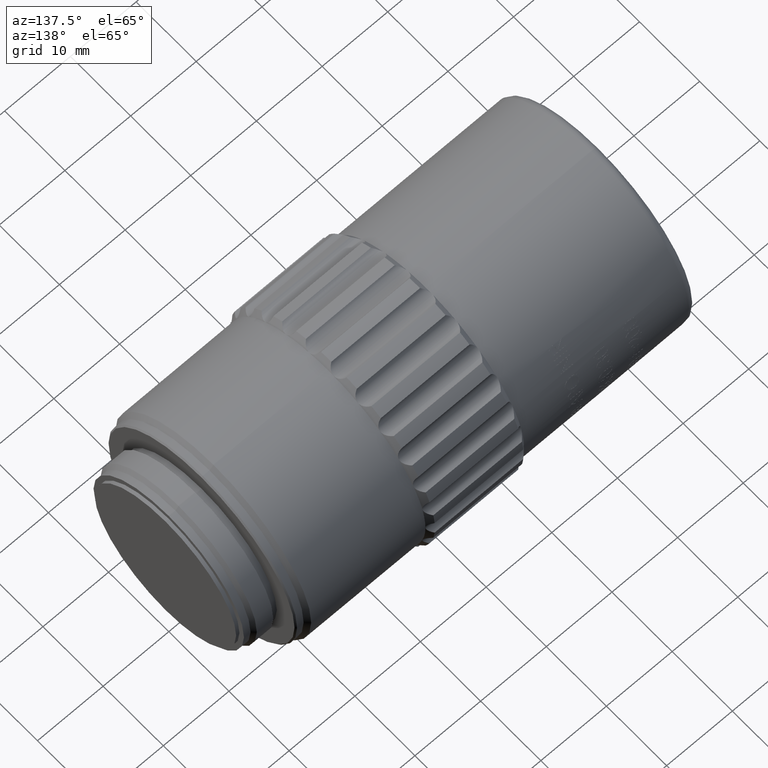
[diagram: clean part render]
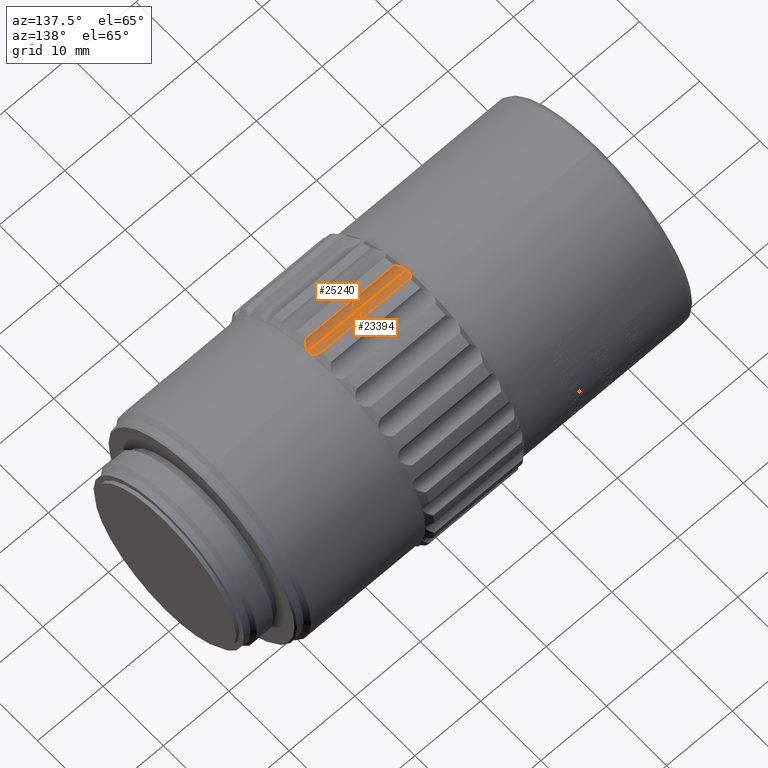
[diagram: same view with one multi-face feature highlighted, each face labeled with its STEP entity id]
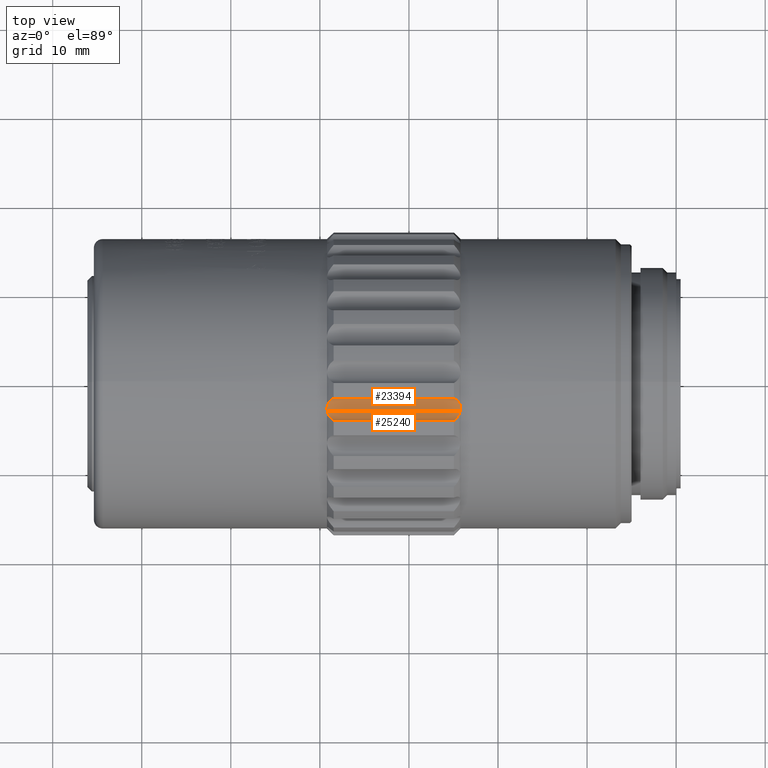
[diagram: same view with one multi-face feature highlighted, each face labeled with its STEP entity id]
A machine part, auxiliary view. The highlighted faces form ONE feature: a constant-radius fillet chain: 2 tangent blend faces with common blend radius 1.5 mm. The faces share edges in the B-rep.
A second angle (top view) of the same feature is appended — it is thin or edge-on in the first view.
Their STEP definitions:
[1] entity #23394 (Cylinder):
#150 = DIRECTION ( 'NONE',  ( 1.000000000000000000, -0.000000000000000000, -0.000000000000000000 ) ) ;
#260 = ORIENTED_EDGE ( 'NONE', *, *, #24752, .F. ) ;
#437 = EDGE_LOOP ( 'NONE', ( #15414, #11330, #7886, #3222, #260, #16733 ) ) ;
#728 = B_SPLINE_CURVE_WITH_KNOTS ( 'NONE', 3,
 ( #6551, #14457, #29446, #19236, #4070, #14127, #16930, #24168, #1606, #26807 ),
 .UNSPECIFIED., .F., .F.,
 ( 4, 2, 2, 2, 4 ),
 ( 2.974564130038924633E-07, 0.0004282492857254085149, 0.0008562011150378131619, 0.001284152944350218026, 0.001712104773662622564 ),
 .UNSPECIFIED. ) ;
#1353 = CARTESIAN_POINT ( 'NONE',  ( 75.40962903202934342, -2.146819791066993499, 16.50147826266095308 ) ) ;
#1606 = CARTESIAN_POINT ( 'NONE',  ( 60.79999999999997584, -2.903777057719374000, 15.98909730937626428 ) ) ;
#1623 = CARTESIAN_POINT ( 'NONE',  ( 60.79999999999997584, -3.044946362018025710, 15.96216782434119530 ) ) ;
#2027 = CARTESIAN_POINT ( 'NONE',  ( 75.78991868600670045, -3.233442578660439271, 15.93559870043398696 ) ) ;
#2231 = VERTEX_POINT ( 'NONE', #13215 ) ;
#3222 = ORIENTED_EDGE ( 'NONE', *, *, #12245, .T. ) ;
#3972 = CARTESIAN_POINT ( 'NONE',  ( 75.14589054742583585, -1.968093483769524532, 16.78922534943584211 ) ) ;
#4070 = CARTESIAN_POINT ( 'NONE',  ( 61.10973675671873906, -2.224176612620375248, 16.41002070416310232 ) ) ;
#4331 = CARTESIAN_POINT ( 'NONE',  ( 61.54999999999999716, -1.928669130568464007, 16.89024083264630249 ) ) ;
#4573 = CARTESIAN_POINT ( 'NONE',  ( 60.80995898652800236, -3.232843854271358897, 15.93559870043414683 ) ) ;
#6450 = CARTESIAN_POINT ( 'NONE',  ( 75.69228534282547116, -2.520179302112122599, 16.16294462097897267 ) ) ;
#6517 = EDGE_CURVE ( 'NONE', #20421, #2231, #13465, .T. ) ;
#6551 = CARTESIAN_POINT ( 'NONE',  ( 61.54999999999999716, -1.928669130568464007, 16.89024083264630249 ) ) ;
#6915 = VERTEX_POINT ( 'NONE', #15006 ) ;
#7886 = ORIENTED_EDGE ( 'NONE', *, *, #6517, .T. ) ;
#10396 = EDGE_CURVE ( 'NONE', #24917, #6915, #27034, .T. ) ;
#11330 = ORIENTED_EDGE ( 'NONE', *, *, #11764, .T. ) ;
#11407 = CARTESIAN_POINT ( 'NONE',  ( 75.23739571389702974, -2.018785572550483298, 16.69113063305953304 ) ) ;
#11675 = CARTESIAN_POINT ( 'NONE',  ( 60.82899578901275817, -3.326018333896651136, 15.93559870043417881 ) ) ;
#11743 = CARTESIAN_POINT ( 'NONE',  ( 75.79999999999999716, -3.137510692867787832, 15.94451023387006749 ) ) ;
#11764 = EDGE_CURVE ( 'NONE', #6915, #20421, #14972, .T. ) ;
#12091 = CARTESIAN_POINT ( 'NONE',  ( 75.04999999999999716, -1.928669130568467116, 16.89024083264629539 ) ) ;
#12245 = EDGE_CURVE ( 'NONE', #2231, #16861, #17495, .T. ) ;
#12308 = DIRECTION ( 'NONE',  ( 1.000000000000000000, -0.000000000000000000, -0.000000000000000000 ) ) ;
#12750 = CYLINDRICAL_SURFACE ( 'NONE', #30454, 1.500000000000001332 ) ;
#12915 = CARTESIAN_POINT ( 'NONE',  ( 57.49999999999997868, -3.326018333896612500, 17.43559870043422677 ) ) ;
#13215 = CARTESIAN_POINT ( 'NONE',  ( 75.79999999999999716, -3.044946362018025265, 15.96216782434119175 ) ) ;
#13465 = B_SPLINE_CURVE_WITH_KNOTS ( 'NONE', 3,
 ( #31978, #2027, #11743, #27067 ),
 .UNSPECIFIED., .F., .F.,
 ( 4, 4 ),
 ( 0.001431497917143599672, 0.001712104773662712119 ),
 .UNSPECIFIED. ) ;
#13881 = CARTESIAN_POINT ( 'NONE',  ( 75.63192979633140567, -2.411030420946006281, 16.24040379550284285 ) ) ;
#14127 = CARTESIAN_POINT ( 'NONE',  ( 60.96823422223180700, -2.410640219768960701, 16.24063078732669752 ) ) ;
#14195 = CARTESIAN_POINT ( 'NONE',  ( 75.49136205464864702, -2.225452049319518011, 16.40873571304407719 ) ) ;
#14457 = CARTESIAN_POINT ( 'NONE',  ( 61.45408960883360550, -1.968101642307118038, 16.78920444513302002 ) ) ;
#14972 = LINE ( 'NONE', #17607, #25351 ) ;
#15006 = CARTESIAN_POINT ( 'NONE',  ( 60.82899578901275817, -3.326018333896651136, 15.93559870043417881 ) ) ;
#15414 = ORIENTED_EDGE ( 'NONE', *, *, #10396, .T. ) ;
#16665 = CARTESIAN_POINT ( 'NONE',  ( 75.80000000000002558, -2.903962495170082203, 15.98906193529066044 ) ) ;
#16733 = ORIENTED_EDGE ( 'NONE', *, *, #19545, .T. ) ;
#16861 = VERTEX_POINT ( 'NONE', #12091 ) ;
#16930 = CARTESIAN_POINT ( 'NONE',  ( 60.90796529491058209, -2.519595152165005292, 16.16329093117371940 ) ) ;
#17157 = CARTESIAN_POINT ( 'NONE',  ( 75.77645709619201853, -2.765781410580853805, 16.03732850449384628 ) ) ;
#17495 = B_SPLINE_CURVE_WITH_KNOTS ( 'NONE', 3,
 ( #24556, #16665, #17157, #6450, #13881, #14195, #1353, #11407, #3972, #21442 ),
 .UNSPECIFIED., .F., .F.,
 ( 4, 2, 2, 2, 4 ),
 ( 0.001712104773662712119, 0.002139494453174580792, 0.002566884132686449681, 0.002994273812198318570, 0.003421663491710187025 ),
 .UNSPECIFIED. ) ;
#17607 = CARTESIAN_POINT ( 'NONE',  ( 57.49999999999997868, -3.326018333896612500, 15.93559870043422677 ) ) ;
#17697 = DIRECTION ( 'NONE',  ( 1.000000000000000000, -0.000000000000000000, -0.000000000000000000 ) ) ;
#18026 = DIRECTION ( 'NONE',  ( 0.000000000000000000, 0.000000000000000000, -1.000000000000000000 ) ) ;
#19236 = CARTESIAN_POINT ( 'NONE',  ( 61.19110653269260780, -2.146213796322844924, 16.50229736861066954 ) ) ;
#19545 = EDGE_CURVE ( 'NONE', #21681, #24917, #728, .T. ) ;
#19675 = VECTOR ( 'NONE', #12308, 1000.000000000000000 ) ;
#19744 = CARTESIAN_POINT ( 'NONE',  ( 75.77100421098816696, -3.326018333897374113, 15.93559870043316096 ) ) ;
#20421 = VERTEX_POINT ( 'NONE', #19744 ) ;
#21442 = CARTESIAN_POINT ( 'NONE',  ( 75.04999999999999716, -1.928669130568467116, 16.89024083264629539 ) ) ;
#21681 = VERTEX_POINT ( 'NONE', #4331 ) ;
#23394 = ADVANCED_FACE ( 'NONE', ( #27743 ), #12750, .F. ) ;
#24168 = CARTESIAN_POINT ( 'NONE',  ( 60.82357238813362699, -2.765548689153053186, 16.03740015048654399 ) ) ;
#24556 = CARTESIAN_POINT ( 'NONE',  ( 75.79999999999999716, -3.044946362018025265, 15.96216782434119175 ) ) ;
#24752 = EDGE_CURVE ( 'NONE', #21681, #16861, #31725, .T. ) ;
#24917 = VERTEX_POINT ( 'NONE', #29195 ) ;
#25351 = VECTOR ( 'NONE', #150, 1000.000000000000000 ) ;
#26807 = CARTESIAN_POINT ( 'NONE',  ( 60.79999999999997584, -3.044946362018025710, 15.96216782434119530 ) ) ;
#27034 = B_SPLINE_CURVE_WITH_KNOTS ( 'NONE', 3,
 ( #1623, #31590, #4573, #11675 ),
 .UNSPECIFIED., .F., .F.,
 ( 4, 4 ),
 ( 0.001712104773662622564, 0.001992993154130738315 ),
 .UNSPECIFIED. ) ;
#27067 = CARTESIAN_POINT ( 'NONE',  ( 75.79999999999999716, -3.044946362018025265, 15.96216782434119175 ) ) ;
#27134 = CARTESIAN_POINT ( 'NONE',  ( 78.99999999999998579, -1.928669130568464007, 16.89024083264630249 ) ) ;
#27743 = FACE_OUTER_BOUND ( 'NONE', #437, .T. ) ;
#29195 = CARTESIAN_POINT ( 'NONE',  ( 60.79999999999997584, -3.044946362018025710, 15.96216782434119530 ) ) ;
#29446 = CARTESIAN_POINT ( 'NONE',  ( 61.36274165389811230, -2.018742951565856814, 16.69127269819109216 ) ) ;
#30454 = AXIS2_PLACEMENT_3D ( 'NONE', #12915, #17697, #18026 ) ;
#31590 = CARTESIAN_POINT ( 'NONE',  ( 60.79999999999997584, -3.137603559721723112, 15.94449251857023242 ) ) ;
#31725 = LINE ( 'NONE', #27134, #19675 ) ;
#31978 = CARTESIAN_POINT ( 'NONE',  ( 75.77100421098816696, -3.326018333897374113, 15.93559870043316096 ) ) ;
[2] entity #25240 (Cylinder):
#150 = DIRECTION ( 'NONE',  ( 1.000000000000000000, -0.000000000000000000, -0.000000000000000000 ) ) ;
#614 = CARTESIAN_POINT ( 'NONE',  ( 61.24025422312752198, -4.151400109336255362, 16.16649809105467384 ) ) ;
#2576 = CARTESIAN_POINT ( 'NONE',  ( 61.04656205860384688, -3.873835666926843224, 16.03546869660582175 ) ) ;
#3881 = LINE ( 'NONE', #6353, #8909 ) ;
#4322 = ORIENTED_EDGE ( 'NONE', *, *, #6250, .T. ) ;
#4593 = CYLINDRICAL_SURFACE ( 'NONE', #5467, 1.500000000000001332 ) ;
#5467 = AXIS2_PLACEMENT_3D ( 'NONE', #19597, #14493, #29645 ) ;
#5512 = EDGE_LOOP ( 'NONE', ( #31099, #13235, #27430, #4322 ) ) ;
#5514 = CARTESIAN_POINT ( 'NONE',  ( 75.35861559643646501, -4.152680399250234800, 16.16733456433932759 ) ) ;
#5597 = CARTESIAN_POINT ( 'NONE',  ( 61.54999999999999716, -4.424481144593304549, 16.41413922815139514 ) ) ;
#6250 = EDGE_CURVE ( 'NONE', #15082, #20421, #16300, .T. ) ;
#6353 = CARTESIAN_POINT ( 'NONE',  ( 78.99999999999998579, -4.424481144593304549, 16.41413922815139514 ) ) ;
#6915 = VERTEX_POINT ( 'NONE', #15006 ) ;
#8909 = VECTOR ( 'NONE', #29245, 1000.000000000000000 ) ;
#9804 = VERTEX_POINT ( 'NONE', #5597 ) ;
#10247 = CARTESIAN_POINT ( 'NONE',  ( 75.04999999999999716, -4.424481144593303661, 16.41413922815139514 ) ) ;
#11764 = EDGE_CURVE ( 'NONE', #6915, #20421, #14972, .T. ) ;
#13235 = ORIENTED_EDGE ( 'NONE', *, *, #17538, .T. ) ;
#14493 = DIRECTION ( 'NONE',  ( 1.000000000000000000, -0.000000000000000000, -0.000000000000000000 ) ) ;
#14972 = LINE ( 'NONE', #17607, #25351 ) ;
#15006 = CARTESIAN_POINT ( 'NONE',  ( 60.82899578901275817, -3.326018333896651136, 15.93559870043417881 ) ) ;
#15082 = VERTEX_POINT ( 'NONE', #10247 ) ;
#15100 = CARTESIAN_POINT ( 'NONE',  ( 61.54999999999999716, -4.424481144593304549, 16.41413922815139514 ) ) ;
#15245 = CARTESIAN_POINT ( 'NONE',  ( 75.61092697761856130, -3.774917527819189544, 16.00009225224912868 ) ) ;
#15269 = CARTESIAN_POINT ( 'NONE',  ( 60.82899578901275817, -3.326018333896651136, 15.93559870043417881 ) ) ;
#15572 = CARTESIAN_POINT ( 'NONE',  ( 75.70801790314273205, -3.559902596934149788, 15.94983714466939873 ) ) ;
#16300 = B_SPLINE_CURVE_WITH_KNOTS ( 'NONE', 3,
 ( #30390, #20019, #5514, #20181, #15245, #15572, #32512, #23146 ),
 .UNSPECIFIED., .F., .F.,
 ( 4, 2, 2, 4 ),
 ( 2.974564130949610518E-07, 0.0007158976867783453006, 0.001073697801960972649, 0.001431497917143599672 ),
 .UNSPECIFIED. ) ;
#17538 = EDGE_CURVE ( 'NONE', #6915, #9804, #18470, .T. ) ;
#17607 = CARTESIAN_POINT ( 'NONE',  ( 57.49999999999997868, -3.326018333896612500, 15.93559870043422677 ) ) ;
#17738 = CARTESIAN_POINT ( 'NONE',  ( 60.98897879663197585, -3.774739517599668304, 16.00003741737641150 ) ) ;
#18470 = B_SPLINE_CURVE_WITH_KNOTS ( 'NONE', 3,
 ( #15269, #30091, #25472, #17738, #2576, #614, #20695, #15100 ),
 .UNSPECIFIED., .F., .F.,
 ( 4, 2, 2, 4 ),
 ( 0.001992993154130738315, 0.002350160738525578809, 0.002707328322920419302, 0.003421663491710102457 ),
 .UNSPECIFIED. ) ;
#19597 = CARTESIAN_POINT ( 'NONE',  ( 57.49999999999997868, -3.326018333896612500, 17.43559870043422677 ) ) ;
#19744 = CARTESIAN_POINT ( 'NONE',  ( 75.77100421098816696, -3.326018333897374113, 15.93559870043316096 ) ) ;
#20019 = CARTESIAN_POINT ( 'NONE',  ( 75.21037669034704720, -4.300980398022614892, 16.28132830331069059 ) ) ;
#20054 = EDGE_CURVE ( 'NONE', #15082, #9804, #3881, .T. ) ;
#20091 = FACE_OUTER_BOUND ( 'NONE', #5512, .T. ) ;
#20181 = CARTESIAN_POINT ( 'NONE',  ( 75.55255105485471745, -3.875274332111990017, 16.03603309971225599 ) ) ;
#20421 = VERTEX_POINT ( 'NONE', #19744 ) ;
#20695 = CARTESIAN_POINT ( 'NONE',  ( 61.38972942337070293, -4.301062112661685255, 16.28141617805711761 ) ) ;
#23146 = CARTESIAN_POINT ( 'NONE',  ( 75.77100421098816696, -3.326018333897374113, 15.93559870043316096 ) ) ;
#25240 = ADVANCED_FACE ( 'NONE', ( #20091 ), #4593, .F. ) ;
#25351 = VECTOR ( 'NONE', #150, 1000.000000000000000 ) ;
#25472 = CARTESIAN_POINT ( 'NONE',  ( 60.89192229637123432, -3.559739456141114644, 15.94981226385081285 ) ) ;
#27430 = ORIENTED_EDGE ( 'NONE', *, *, #20054, .F. ) ;
#29245 = DIRECTION ( 'NONE',  ( -1.000000000000000000, 0.000000000000000000, 0.000000000000000000 ) ) ;
#29645 = DIRECTION ( 'NONE',  ( 0.000000000000000000, 0.000000000000000000, -1.000000000000000000 ) ) ;
#30091 = CARTESIAN_POINT ( 'NONE',  ( 60.85320230388080631, -3.444495658446558473, 15.93559870043415039 ) ) ;
#30390 = CARTESIAN_POINT ( 'NONE',  ( 75.04999999999999716, -4.424481144593303661, 16.41413922815139514 ) ) ;
#31099 = ORIENTED_EDGE ( 'NONE', *, *, #11764, .F. ) ;
#32512 = CARTESIAN_POINT ( 'NONE',  ( 75.74688647764143923, -3.444061122650436513, 15.93559870043405979 ) ) ;